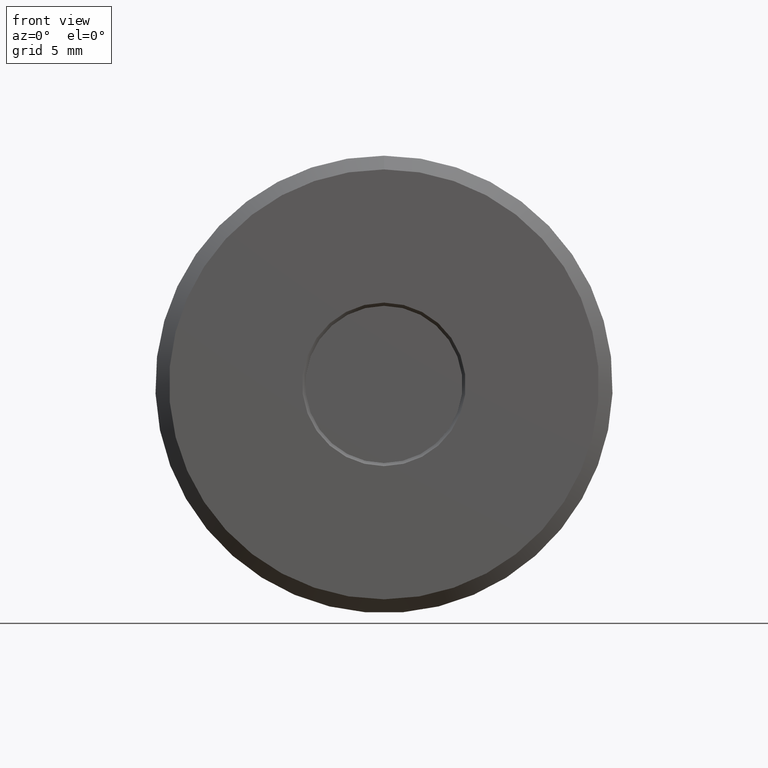
[diagram: clean part render]
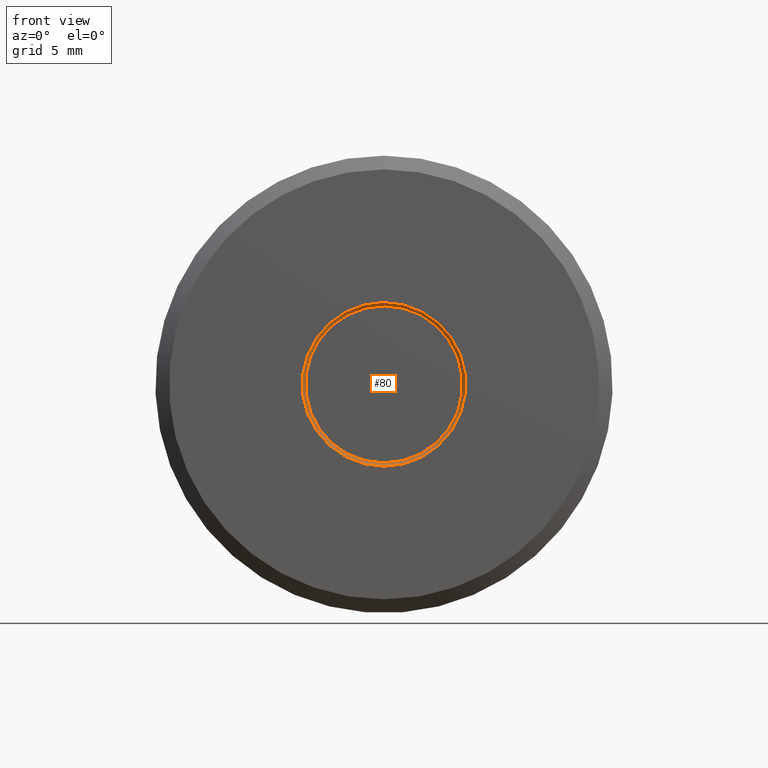
[diagram: same view with one face highlighted and labeled with its STEP entity id]
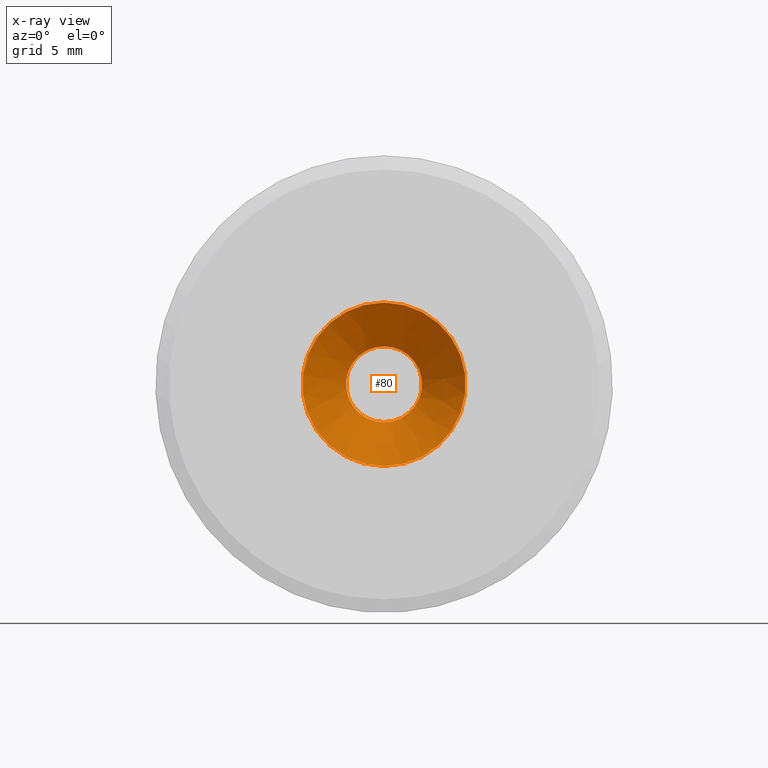
[diagram: x-ray of the same camera — body ghosted, the highlighted face saturated]
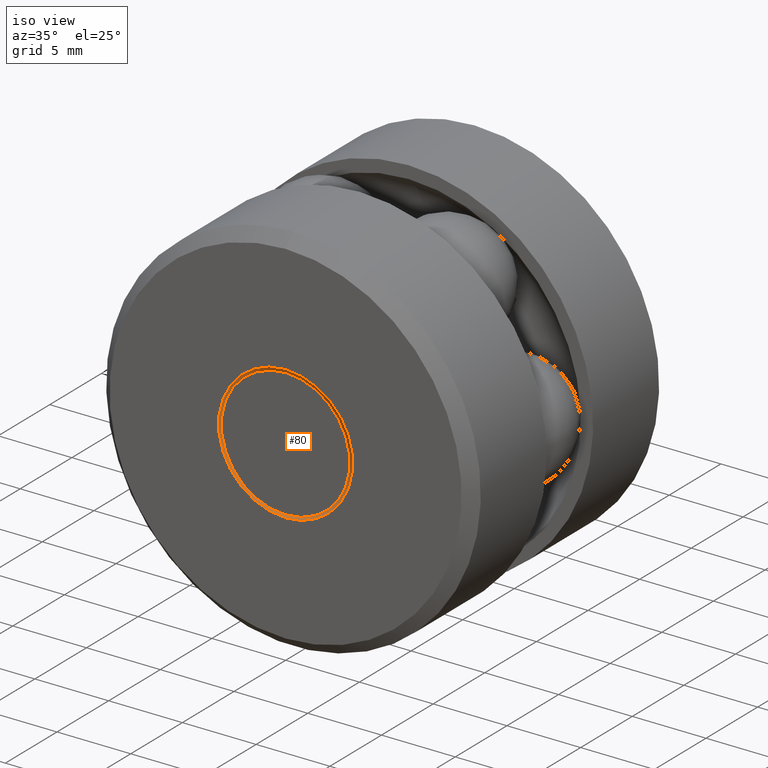
[diagram: same view with one face highlighted and labeled with its STEP entity id]
A machine part, front view. The second image highlights one B-rep face of the part: STEP entity #80.
The next image is the same camera in x-ray: the body ghosted, the highlighted face saturated — about 0% of this face is hidden behind the body in this view.
A second angle (iso view) of the same face is appended — the face is thin or edge-on in the first view.
In plain terms, the highlighted conical surface has half-angle 45 deg.
Its self-contained STEP definition (entity closure, byte-faithful):
#1 = DIRECTION ( 'NONE',  ( 0.0000000000000000000, 0.0000000000000000000, -1.000000000000000000 ) ) ;
#37 = DIRECTION ( 'NONE',  ( 0.0000000000000000000, 0.0000000000000000000, 1.000000000000000000 ) ) ;
#46 = DIRECTION ( 'NONE',  ( -0.0000000000000000000, 1.000000000000000000, -0.0000000000000000000 ) ) ;
#53 = CARTESIAN_POINT ( 'NONE',  ( 0.0000000000000000000, 0.0000000000000000000, 0.0000000000000000000 ) ) ;
#80 = ADVANCED_FACE ( 'NONE', ( #536, #472 ), #369, .F. ) ;
#118 = VERTEX_POINT ( 'NONE', #253 ) ;
#195 = CARTESIAN_POINT ( 'NONE',  ( 0.0000000000000000000, 0.0000000000000000000, 0.0000000000000000000 ) ) ;
#206 = CIRCLE ( 'NONE', #401, 0.1788210678118644400 ) ;
#219 = CARTESIAN_POINT ( 'NONE',  ( 0.0000000000000000000, 0.09582106781186551500, 0.0000000000000000000 ) ) ;
#226 = ORIENTED_EDGE ( 'NONE', *, *, #539, .T. ) ;
#230 = DIRECTION ( 'NONE',  ( 0.0000000000000000000, 0.0000000000000000000, 1.000000000000000000 ) ) ;
#234 = DIRECTION ( 'NONE',  ( -0.0000000000000000000, 1.000000000000000000, -0.0000000000000000000 ) ) ;
#238 = VERTEX_POINT ( 'NONE', #257 ) ;
#244 = CIRCLE ( 'NONE', #453, 0.08300000000000000400 ) ;
#253 = CARTESIAN_POINT ( 'NONE',  ( 0.0000000000000000000, 0.09582106781186551500, 0.08300000000000000400 ) ) ;
#257 = CARTESIAN_POINT ( 'NONE',  ( 0.0000000000000000000, 0.0000000000000000000, 0.1788210678118644400 ) ) ;
#259 = ORIENTED_EDGE ( 'NONE', *, *, #507, .F. ) ;
#275 = AXIS2_PLACEMENT_3D ( 'NONE', #53, #447, #1 ) ;
#369 = CONICAL_SURFACE ( 'NONE', #275, 0.1788210678118644400, 0.7853981633974426200 ) ;
#401 = AXIS2_PLACEMENT_3D ( 'NONE', #195, #46, #37 ) ;
#447 = DIRECTION ( 'NONE',  ( 0.0000000000000000000, -1.000000000000000000, 0.0000000000000000000 ) ) ;
#453 = AXIS2_PLACEMENT_3D ( 'NONE', #219, #234, #230 ) ;
#472 = FACE_OUTER_BOUND ( 'NONE', #521, .T. ) ;
#506 = EDGE_LOOP ( 'NONE', ( #226 ) ) ;
#507 = EDGE_CURVE ( 'NONE', #238, #238, #206, .T. ) ;
#521 = EDGE_LOOP ( 'NONE', ( #259 ) ) ;
#536 = FACE_BOUND ( 'NONE', #506, .T. ) ;
#539 = EDGE_CURVE ( 'NONE', #118, #118, #244, .T. ) ;